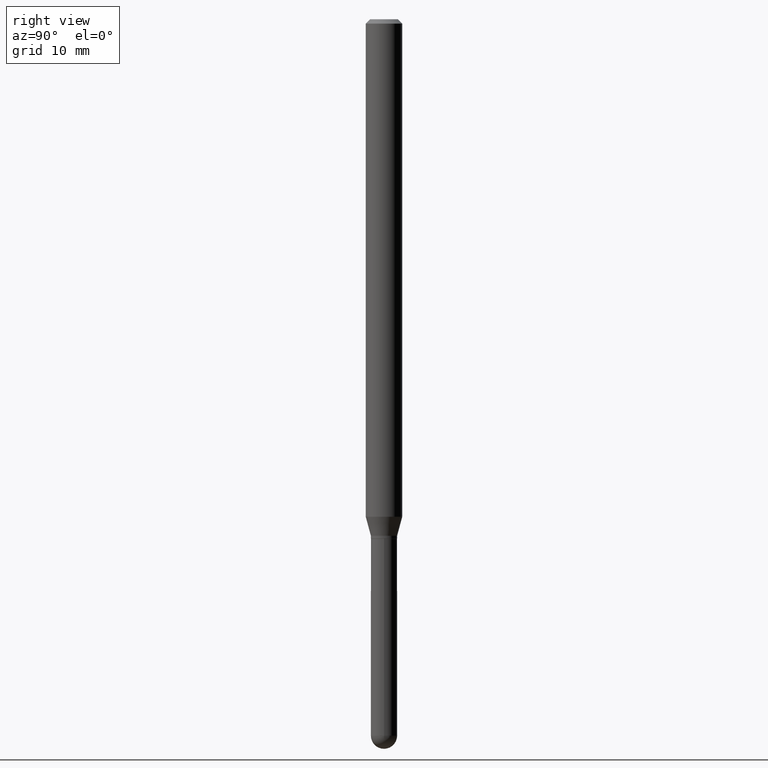
[diagram: clean part render]
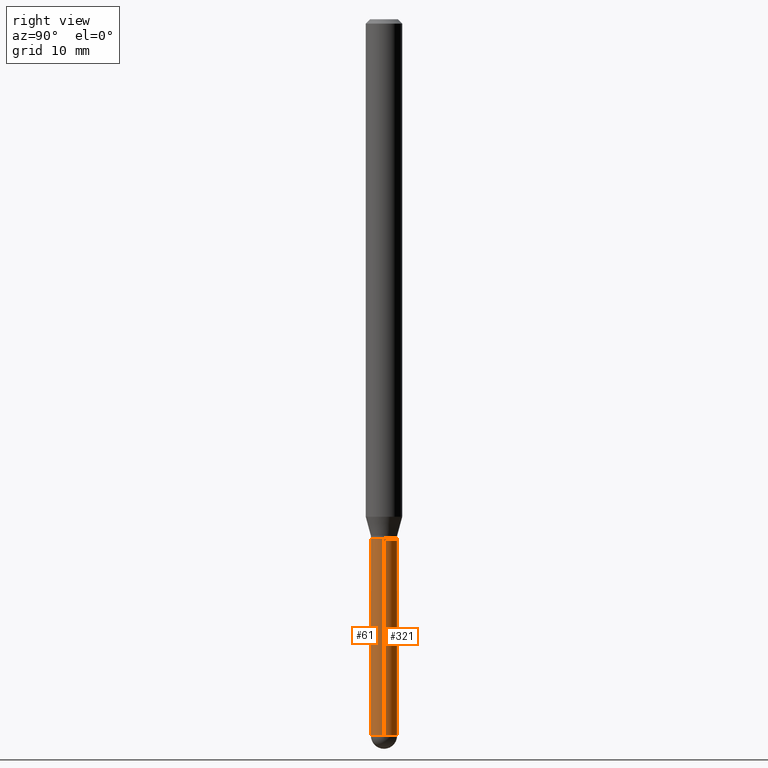
[diagram: same view with one multi-face feature highlighted, each face labeled with its STEP entity id]
A machine part, right view. The highlighted faces form ONE feature: a constant-radius fillet chain: 2 tangent blend faces with common blend radius 1.143 mm. The faces share edges in the B-rep.
Their STEP definitions:
[1] entity #61 (Cylinder):
#7 = LINE ( 'NONE', #360, #388 ) ;
#27 = CIRCLE ( 'NONE', #465, 0.04500000000000001221 ) ;
#29 = VERTEX_POINT ( 'NONE', #312 ) ;
#36 = EDGE_LOOP ( 'NONE', ( #394, #203, #347, #296, #431 ) ) ;
#46 = CYLINDRICAL_SURFACE ( 'NONE', #168, 0.04500000000000000527 ) ;
#49 = CARTESIAN_POINT ( 'NONE',  ( 0.000000000000000000, 0.000000000000000000, 0.000000000000000000 ) ) ;
#61 = ADVANCED_FACE ( 'NONE', ( #235 ), #46, .T. ) ;
#82 = CIRCLE ( 'NONE', #279, 0.04499999999999999833 ) ;
#98 = EDGE_CURVE ( 'NONE', #137, #181, #7, .T. ) ;
#105 = CARTESIAN_POINT ( 'NONE',  ( 6.003625919184510659E-29, -8.571586686859921733E-15, -2.455000000000000071 ) ) ;
#110 = DIRECTION ( 'NONE',  ( -2.445468806185136877E-29, 3.491481338843145188E-15, 1.000000000000000000 ) ) ;
#137 = VERTEX_POINT ( 'NONE', #213 ) ;
#142 = LINE ( 'NONE', #266, #313 ) ;
#148 = CARTESIAN_POINT ( 'NONE',  ( 6.003625919184510659E-29, -8.571586686859921733E-15, -2.455000000000000071 ) ) ;
#151 = CARTESIAN_POINT ( 'NONE',  ( 4.352934475009543120E-29, -6.214836783140799618E-15, -1.780000000000000027 ) ) ;
#168 = AXIS2_PLACEMENT_3D ( 'NONE', #49, #169, #208 ) ;
#169 = DIRECTION ( 'NONE',  ( -2.445468806185136597E-29, 3.491481338843145583E-15, 1.000000000000000000 ) ) ;
#179 = VERTEX_POINT ( 'NONE', #257 ) ;
#181 = VERTEX_POINT ( 'NONE', #410 ) ;
#188 = EDGE_CURVE ( 'NONE', #179, #304, #142, .T. ) ;
#201 = EDGE_CURVE ( 'NONE', #29, #137, #27, .T. ) ;
#203 = ORIENTED_EDGE ( 'NONE', *, *, #264, .T. ) ;
#208 = DIRECTION ( 'NONE',  ( 1.000000000000000000, -6.982962677686267499E-15, 4.876176775795935793E-29 ) ) ;
#213 = CARTESIAN_POINT ( 'NONE',  ( 0.04500000000000001221, -7.707445055496241968E-15, -2.455000000000000071 ) ) ;
#222 = CIRCLE ( 'NONE', #287, 0.04500000000000001221 ) ;
#235 = FACE_OUTER_BOUND ( 'NONE', #36, .T. ) ;
#257 = CARTESIAN_POINT ( 'NONE',  ( -0.04500000000000001221, -7.073467503908314913E-15, -2.455000000000000071 ) ) ;
#259 = DIRECTION ( 'NONE',  ( -2.445468806185136597E-29, 3.491481338843145583E-15, 1.000000000000000000 ) ) ;
#264 = EDGE_CURVE ( 'NONE', #179, #29, #222, .T. ) ;
#266 = CARTESIAN_POINT ( 'NONE',  ( -0.04500000000000000527, 3.197442310920451211E-16, -2.213520790614707910E-30 ) ) ;
#279 = AXIS2_PLACEMENT_3D ( 'NONE', #151, #396, #433 ) ;
#282 = EDGE_CURVE ( 'NONE', #304, #181, #82, .T. ) ;
#287 = AXIS2_PLACEMENT_3D ( 'NONE', #105, #259, #303 ) ;
#288 = DIRECTION ( 'NONE',  ( -2.445468806185136877E-29, 3.491481338843145188E-15, 1.000000000000000000 ) ) ;
#296 = ORIENTED_EDGE ( 'NONE', *, *, #98, .T. ) ;
#303 = DIRECTION ( 'NONE',  ( 1.000000000000000000, -6.982962677686266711E-15, 0.000000000000000000 ) ) ;
#304 = VERTEX_POINT ( 'NONE', #422 ) ;
#306 = DIRECTION ( 'NONE',  ( 1.000000000000000000, -6.982962677686266711E-15, 0.000000000000000000 ) ) ;
#312 = CARTESIAN_POINT ( 'NONE',  ( -3.197442310919850198E-16, -0.04500000000000856787, -2.454999999999999627 ) ) ;
#313 = VECTOR ( 'NONE', #110, 39.37007874015748143 ) ;
#347 = ORIENTED_EDGE ( 'NONE', *, *, #201, .T. ) ;
#360 = CARTESIAN_POINT ( 'NONE',  ( 0.04500000000000000527, -3.142333204958820809E-16, 2.194279549108171317E-30 ) ) ;
#388 = VECTOR ( 'NONE', #288, 39.37007874015748143 ) ;
#394 = ORIENTED_EDGE ( 'NONE', *, *, #188, .F. ) ;
#396 = DIRECTION ( 'NONE',  ( -2.445468806185136597E-29, 3.491481338843145583E-15, 1.000000000000000000 ) ) ;
#410 = CARTESIAN_POINT ( 'NONE',  ( 0.04499999999999999833, -6.529070103636681305E-15, -1.780000000000000027 ) ) ;
#422 = CARTESIAN_POINT ( 'NONE',  ( -0.04499999999999999833, -7.073467503908314913E-15, -1.780000000000000027 ) ) ;
#431 = ORIENTED_EDGE ( 'NONE', *, *, #282, .F. ) ;
#433 = DIRECTION ( 'NONE',  ( 1.000000000000000000, -6.982962677686269077E-15, 0.000000000000000000 ) ) ;
#458 = DIRECTION ( 'NONE',  ( -2.445468806185136597E-29, 3.491481338843145583E-15, 1.000000000000000000 ) ) ;
#465 = AXIS2_PLACEMENT_3D ( 'NONE', #148, #458, #306 ) ;
[2] entity #321 (Cylinder):
#7 = LINE ( 'NONE', #360, #388 ) ;
#18 = CIRCLE ( 'NONE', #92, 0.04500000000000001221 ) ;
#22 = ORIENTED_EDGE ( 'NONE', *, *, #219, .T. ) ;
#25 = EDGE_CURVE ( 'NONE', #181, #304, #349, .T. ) ;
#70 = DIRECTION ( 'NONE',  ( -2.445468806185136597E-29, 3.491481338843145583E-15, 1.000000000000000000 ) ) ;
#92 = AXIS2_PLACEMENT_3D ( 'NONE', #176, #502, #335 ) ;
#94 = ORIENTED_EDGE ( 'NONE', *, *, #188, .T. ) ;
#98 = EDGE_CURVE ( 'NONE', #137, #181, #7, .T. ) ;
#101 = DIRECTION ( 'NONE',  ( 1.000000000000000000, -6.982962677686267499E-15, 4.876176775795935793E-29 ) ) ;
#110 = DIRECTION ( 'NONE',  ( -2.445468806185136877E-29, 3.491481338843145188E-15, 1.000000000000000000 ) ) ;
#113 = EDGE_LOOP ( 'NONE', ( #22, #94, #387, #124, #185 ) ) ;
#124 = ORIENTED_EDGE ( 'NONE', *, *, #98, .F. ) ;
#137 = VERTEX_POINT ( 'NONE', #213 ) ;
#141 = CYLINDRICAL_SURFACE ( 'NONE', #241, 0.04500000000000000527 ) ;
#142 = LINE ( 'NONE', #266, #313 ) ;
#149 = CARTESIAN_POINT ( 'NONE',  ( 4.352934475009543120E-29, -6.214836783140799618E-15, -1.780000000000000027 ) ) ;
#170 = CIRCLE ( 'NONE', #305, 0.04500000000000001221 ) ;
#176 = CARTESIAN_POINT ( 'NONE',  ( 6.003625919184510659E-29, -8.571586686859921733E-15, -2.455000000000000071 ) ) ;
#179 = VERTEX_POINT ( 'NONE', #257 ) ;
#181 = VERTEX_POINT ( 'NONE', #410 ) ;
#185 = ORIENTED_EDGE ( 'NONE', *, *, #267, .T. ) ;
#188 = EDGE_CURVE ( 'NONE', #179, #304, #142, .T. ) ;
#213 = CARTESIAN_POINT ( 'NONE',  ( 0.04500000000000001221, -7.707445055496241968E-15, -2.455000000000000071 ) ) ;
#219 = EDGE_CURVE ( 'NONE', #437, #179, #18, .T. ) ;
#241 = AXIS2_PLACEMENT_3D ( 'NONE', #248, #491, #101 ) ;
#248 = CARTESIAN_POINT ( 'NONE',  ( 0.000000000000000000, 0.000000000000000000, 0.000000000000000000 ) ) ;
#257 = CARTESIAN_POINT ( 'NONE',  ( -0.04500000000000001221, -7.073467503908314913E-15, -2.455000000000000071 ) ) ;
#266 = CARTESIAN_POINT ( 'NONE',  ( -0.04500000000000000527, 3.197442310920451211E-16, -2.213520790614707910E-30 ) ) ;
#267 = EDGE_CURVE ( 'NONE', #137, #437, #170, .T. ) ;
#288 = DIRECTION ( 'NONE',  ( -2.445468806185136877E-29, 3.491481338843145188E-15, 1.000000000000000000 ) ) ;
#290 = FACE_OUTER_BOUND ( 'NONE', #113, .T. ) ;
#304 = VERTEX_POINT ( 'NONE', #422 ) ;
#305 = AXIS2_PLACEMENT_3D ( 'NONE', #464, #70, #315 ) ;
#308 = DIRECTION ( 'NONE',  ( -2.445468806185136597E-29, 3.491481338843145583E-15, 1.000000000000000000 ) ) ;
#313 = VECTOR ( 'NONE', #110, 39.37007874015748143 ) ;
#315 = DIRECTION ( 'NONE',  ( 1.000000000000000000, -6.982962677686266711E-15, 0.000000000000000000 ) ) ;
#321 = ADVANCED_FACE ( 'NONE', ( #290 ), #141, .T. ) ;
#335 = DIRECTION ( 'NONE',  ( 1.000000000000000000, -6.982962677686266711E-15, 0.000000000000000000 ) ) ;
#349 = CIRCLE ( 'NONE', #483, 0.04499999999999999833 ) ;
#360 = CARTESIAN_POINT ( 'NONE',  ( 0.04500000000000000527, -3.142333204958820809E-16, 2.194279549108171317E-30 ) ) ;
#368 = CARTESIAN_POINT ( 'NONE',  ( 3.142333204959419850E-16, 0.04499999999999142880, -2.455000000000000071 ) ) ;
#387 = ORIENTED_EDGE ( 'NONE', *, *, #25, .F. ) ;
#388 = VECTOR ( 'NONE', #288, 39.37007874015748143 ) ;
#410 = CARTESIAN_POINT ( 'NONE',  ( 0.04499999999999999833, -6.529070103636681305E-15, -1.780000000000000027 ) ) ;
#422 = CARTESIAN_POINT ( 'NONE',  ( -0.04499999999999999833, -7.073467503908314913E-15, -1.780000000000000027 ) ) ;
#437 = VERTEX_POINT ( 'NONE', #368 ) ;
#464 = CARTESIAN_POINT ( 'NONE',  ( 6.003625919184510659E-29, -8.571586686859921733E-15, -2.455000000000000071 ) ) ;
#468 = DIRECTION ( 'NONE',  ( 1.000000000000000000, -6.982962677686269077E-15, 0.000000000000000000 ) ) ;
#483 = AXIS2_PLACEMENT_3D ( 'NONE', #149, #308, #468 ) ;
#491 = DIRECTION ( 'NONE',  ( -2.445468806185136597E-29, 3.491481338843145583E-15, 1.000000000000000000 ) ) ;
#502 = DIRECTION ( 'NONE',  ( -2.445468806185136597E-29, 3.491481338843145583E-15, 1.000000000000000000 ) ) ;